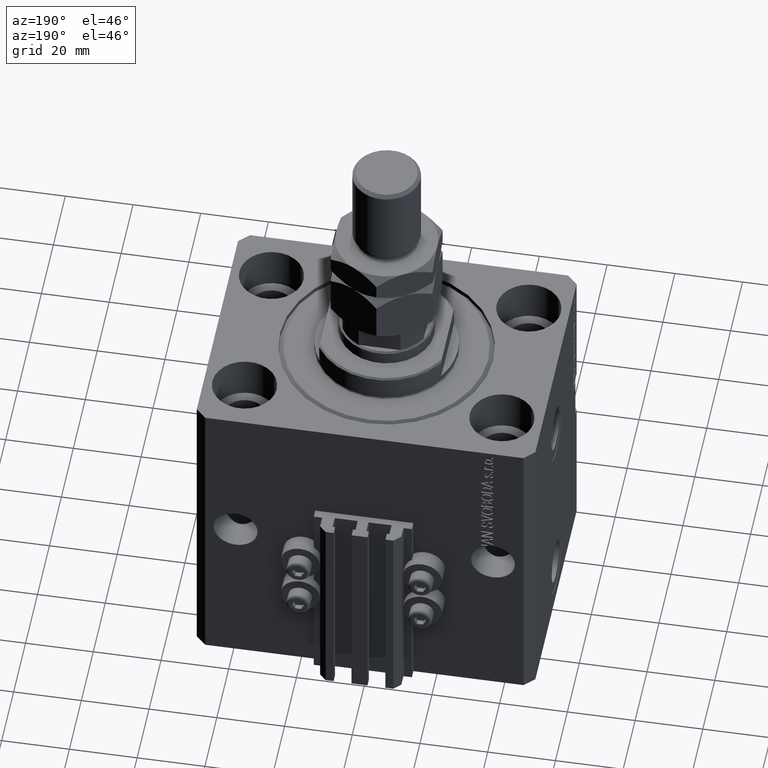
[diagram: clean part render]
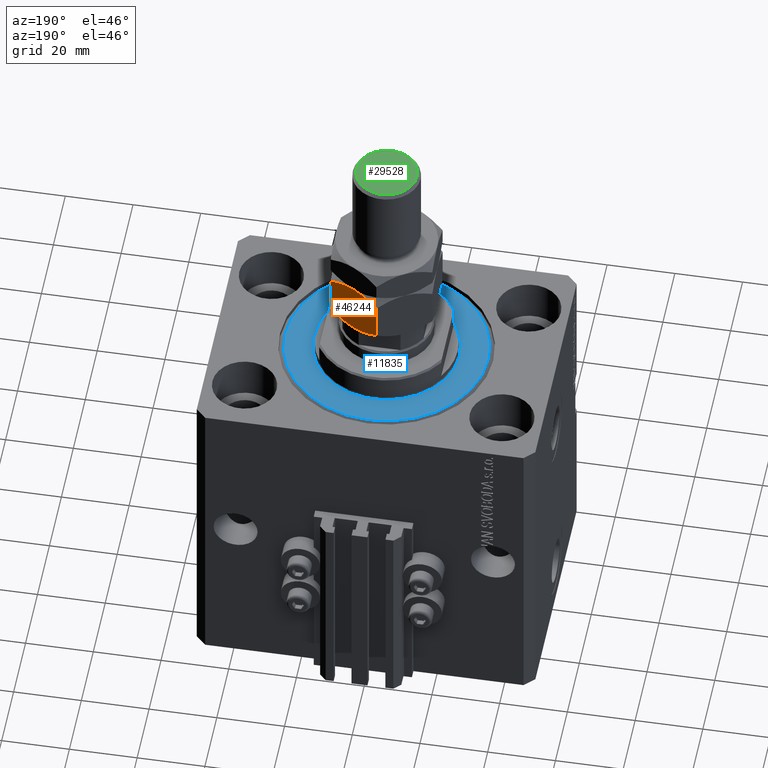
[diagram: same view with three faces highlighted in distinct colors, each labeled with its STEP entity id]
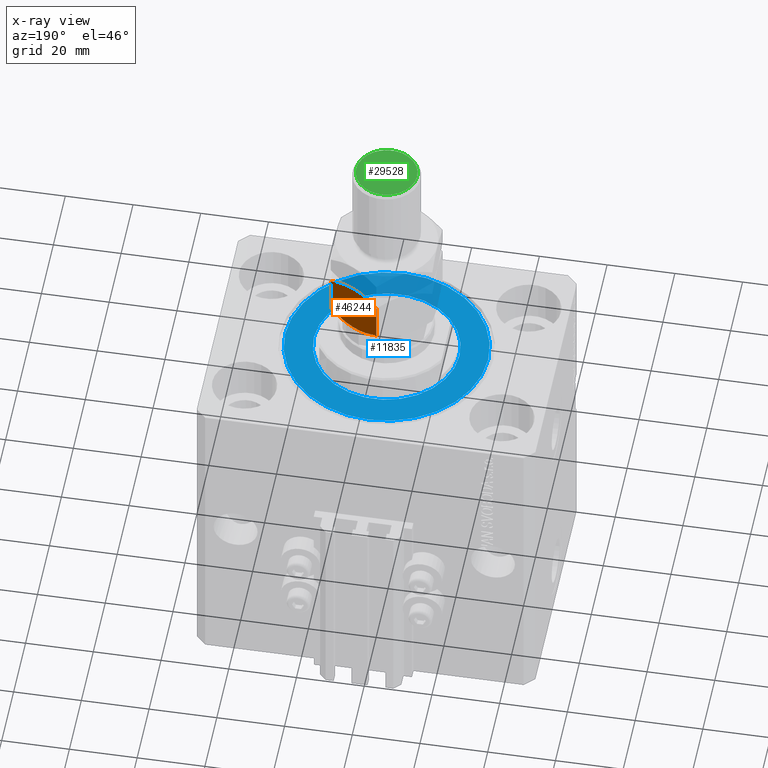
[diagram: x-ray of the same camera — body ghosted, the three highlighted faces saturated]
A machine part, auxiliary view with three faces highlighted in distinct colors.
The next image is the same camera in x-ray (body ghosted, the three faces saturated) — at least one of them is partly hidden behind the body in this view.
Their STEP definitions:

[orange] entity #46244 — the highlighted planar face has unit normal (-0.5, -0.866, 0).
#529 = CARTESIAN_POINT ( 'NONE',  ( 1.176108425306640504, 16.64148155974179843, 1.641481559741787111 ) ) ;
#1117 = CARTESIAN_POINT ( 'NONE',  ( 15.00000000000000000, 8.660254037844389075, 16.00000000000000000 ) ) ;
#2101 = CARTESIAN_POINT ( 'NONE',  ( 8.823580389329306328, 12.22621156269319798, 15.94046462602529957 ) ) ;
#3506 = CARTESIAN_POINT ( 'NONE',  ( 7.500000000000000000, 12.99038105676657651, 16.00000000000000000 ) ) ;
#3925 = CARTESIAN_POINT ( 'NONE',  ( 7.621669386706803087E-17, 17.32050807568877104, 2.320508075688761718 ) ) ;
#7078 = EDGE_LOOP ( 'NONE', ( #36674, #14073, #17906, #43982, #21628, #37387 ) ) ;
#7350 = CARTESIAN_POINT ( 'NONE',  ( 7.500000000000000000, 12.99038105676657651, 16.00000000000000000 ) ) ;
#8234 = CARTESIAN_POINT ( 'NONE',  ( 7.499999999999997335, 12.99038105676658184, 0.000000000000000000 ) ) ;
#10703 = VERTEX_POINT ( 'NONE', #12564 ) ;
#10728 = CARTESIAN_POINT ( 'NONE',  ( 13.82389157469336283, 9.339280553791368789, 14.35851844025821400 ) ) ;
#10970 = CARTESIAN_POINT ( 'NONE',  ( 10.75222765045651663, 11.11270654730956586, 15.55242859148697576 ) ) ;
#11210 = CARTESIAN_POINT ( 'NONE',  ( 12.62116548881249756, 10.03367478323606221, 14.93551393225599710 ) ) ;
#12564 = CARTESIAN_POINT ( 'NONE',  ( 15.00000000000000000, 8.660254037844389075, 13.67949192431123784 ) ) ;
#13432 = CARTESIAN_POINT ( 'NONE',  ( 2.383929548160350631, 15.94414570932928576, 14.93952096862913059 ) ) ;
#13830 = EDGE_CURVE ( 'NONE', #10703, #46080, #41760, .T. ) ;
#14073 = ORIENTED_EDGE ( 'NONE', *, *, #49131, .F. ) ;
#14336 = VERTEX_POINT ( 'NONE', #3925 ) ;
#16056 = DIRECTION ( 'NONE',  ( 0.8660254037844387076, -0.4999999999999997224, 0.000000000000000000 ) ) ;
#17042 = CARTESIAN_POINT ( 'NONE',  ( 15.00000000000000000, 8.660254037844389075, 16.00000000000000000 ) ) ;
#17906 = ORIENTED_EDGE ( 'NONE', *, *, #40590, .F. ) ;
#18484 = CARTESIAN_POINT ( 'NONE',  ( 7.621669386706803087E-17, 17.32050807568877104, 2.320508075688761718 ) ) ;
#18797 = CARTESIAN_POINT ( 'NONE',  ( 7.499999999999997335, 12.99038105676658184, 0.000000000000000000 ) ) ;
#19178 = VERTEX_POINT ( 'NONE', #18797 ) ;
#19252 = VERTEX_POINT ( 'NONE', #37237 ) ;
#20073 = B_SPLINE_CURVE_WITH_KNOTS ( 'NONE', 3,
 ( #18484, #529, #35140, #23179, #39388, #46097, #20192, #8234 ),
 .UNSPECIFIED., .F., .F.,
 ( 4, 2, 2, 4 ),
 ( 2.544309033652185071E-07, 0.004488823491893902638, 0.006733108022389172782, 0.008977392552884443794 ),
 .UNSPECIFIED. ) ;
#20192 = CARTESIAN_POINT ( 'NONE',  ( 6.843123817691747490, 13.36962869744650639, -3.557538378468061917E-16 ) ) ;
#20917 = CARTESIAN_POINT ( 'NONE',  ( 6.195449321423087241, 13.74356374221446764, 16.00000000000000355 ) ) ;
#21628 = ORIENTED_EDGE ( 'NONE', *, *, #48895, .T. ) ;
#22394 = B_SPLINE_CURVE_WITH_KNOTS ( 'NONE', 3,
 ( #48355, #41868, #33917, #45116, #29683, #44623 ),
 .UNSPECIFIED., .F., .F.,
 ( 4, 2, 4 ),
 ( 0.008977392552884443794, 0.01343452311421656532, 0.01789165367554868685 ),
 .UNSPECIFIED. ) ;
#22728 = LINE ( 'NONE', #42382, #31852 ) ;
#23179 = CARTESIAN_POINT ( 'NONE',  ( 4.247772349543482484, 14.86805556622358893, 0.4475714085130255149 ) ) ;
#24086 = VERTEX_POINT ( 'NONE', #31053 ) ;
#24739 = DIRECTION ( 'NONE',  ( -0.000000000000000000, -0.000000000000000000, -1.000000000000000000 ) ) ;
#25494 = B_SPLINE_CURVE_WITH_KNOTS ( 'NONE', 3,
 ( #40352, #20917, #28636, #13432, #32874, #36609 ),
 .UNSPECIFIED., .F., .F.,
 ( 4, 2, 4 ),
 ( 0.008977392552884448998, 0.01343452311421656706, 0.01789165367554868338 ),
 .UNSPECIFIED. ) ;
#26402 = CARTESIAN_POINT ( 'NONE',  ( 10.11832554202262457, 11.47869010025374514, 15.71619733805371411 ) ) ;
#27256 = FACE_OUTER_BOUND ( 'NONE', #7078, .T. ) ;
#27361 = EDGE_CURVE ( 'NONE', #19178, #19252, #22394, .T. ) ;
#28636 = CARTESIAN_POINT ( 'NONE',  ( 4.913081180497409939, 14.48393933357810504, 15.76967007806078946 ) ) ;
#29661 = CARTESIAN_POINT ( 'NONE',  ( 8.156876182308252510, 12.61113341608665728, 16.00000000000000355 ) ) ;
#29683 = CARTESIAN_POINT ( 'NONE',  ( 13.82525345580783949, 9.338494271363313004, 1.642267842169781833 ) ) ;
#31053 = CARTESIAN_POINT ( 'NONE',  ( 3.803331551779305683E-16, 17.32050807568877104, 13.67949192431124317 ) ) ;
#31852 = VECTOR ( 'NONE', #34915, 1000.000000000000000 ) ;
#32874 = CARTESIAN_POINT ( 'NONE',  ( 1.174746544192161846, 16.64226784216984356, 14.35773215783022572 ) ) ;
#33917 = CARTESIAN_POINT ( 'NONE',  ( 10.08691881950258740, 11.49682277995505331, 0.2303299219392160591 ) ) ;
#34862 = EDGE_CURVE ( 'NONE', #14336, #19178, #20073, .T. ) ;
#34915 = DIRECTION ( 'NONE',  ( -0.000000000000000000, -0.000000000000000000, -1.000000000000000000 ) ) ;
#34977 = PLANE ( 'NONE',  #43588 ) ;
#35140 = CARTESIAN_POINT ( 'NONE',  ( 2.378834511187503331, 15.94708733029709080, 1.064486067744004671 ) ) ;
#35478 = LINE ( 'NONE', #17042, #40629 ) ;
#36609 = CARTESIAN_POINT ( 'NONE',  ( 3.803331551779305683E-16, 17.32050807568877104, 13.67949192431124317 ) ) ;
#36674 = ORIENTED_EDGE ( 'NONE', *, *, #34862, .F. ) ;
#37237 = CARTESIAN_POINT ( 'NONE',  ( 15.00000000000000000, 8.660254037844389075, 2.320508075688765715 ) ) ;
#37387 = ORIENTED_EDGE ( 'NONE', *, *, #27361, .F. ) ;
#37626 = CARTESIAN_POINT ( 'NONE',  ( 15.00000000000000000, 8.660254037844389075, 13.67949192431123784 ) ) ;
#39388 = CARTESIAN_POINT ( 'NONE',  ( 4.881674457977373649, 14.50207201327941320, 0.2838026619462936107 ) ) ;
#40352 = CARTESIAN_POINT ( 'NONE',  ( 7.500000000000000000, 12.99038105676657651, 16.00000000000000000 ) ) ;
#40590 = EDGE_CURVE ( 'NONE', #46080, #24086, #25494, .T. ) ;
#40629 = VECTOR ( 'NONE', #24739, 1000.000000000000000 ) ;
#41760 = B_SPLINE_CURVE_WITH_KNOTS ( 'NONE', 3,
 ( #37626, #10728, #11210, #10970, #26402, #2101, #29661, #3506 ),
 .UNSPECIFIED., .F., .F.,
 ( 4, 2, 2, 4 ),
 ( 2.544309033641602453E-07, 0.004488823491893906975, 0.006733108022389177119, 0.008977392552884448998 ),
 .UNSPECIFIED. ) ;
#41868 = CARTESIAN_POINT ( 'NONE',  ( 8.804550678576910983, 12.23719837131869426, -5.031375706690542042E-16 ) ) ;
#42382 = CARTESIAN_POINT ( 'NONE',  ( 0.000000000000000000, 17.32050807568877104, 16.00000000000000000 ) ) ;
#42450 = DIRECTION ( 'NONE',  ( -0.4999999999999997780, -0.8660254037844388186, 0.000000000000000000 ) ) ;
#43588 = AXIS2_PLACEMENT_3D ( 'NONE', #1117, #42450, #16056 ) ;
#43982 = ORIENTED_EDGE ( 'NONE', *, *, #13830, .F. ) ;
#44623 = CARTESIAN_POINT ( 'NONE',  ( 15.00000000000000000, 8.660254037844389075, 2.320508075688765715 ) ) ;
#45116 = CARTESIAN_POINT ( 'NONE',  ( 12.61607045183964715, 10.03661640420386902, 1.060479031370879843 ) ) ;
#46080 = VERTEX_POINT ( 'NONE', #7350 ) ;
#46097 = CARTESIAN_POINT ( 'NONE',  ( 6.176419610670692784, 13.75455055083996214, 0.05953537397470201609 ) ) ;
#46244 = ADVANCED_FACE ( 'NONE', ( #27256 ), #34977, .F. ) ;
#48355 = CARTESIAN_POINT ( 'NONE',  ( 7.499999999999997335, 12.99038105676658184, 0.000000000000000000 ) ) ;
#48895 = EDGE_CURVE ( 'NONE', #10703, #19252, #35478, .T. ) ;
#49131 = EDGE_CURVE ( 'NONE', #24086, #14336, #22728, .T. ) ;

[blue] entity #11835 — the highlighted planar face has unit normal (0, 0, -1).
#5 = CARTESIAN_POINT ( 'NONE',  ( 21.50000000000000000, 0.000000000000000000, -2.168404344971008868E-16 ) ) ;
#1261 = AXIS2_PLACEMENT_3D ( 'NONE', #47606, #12996, #16990 ) ;
#2640 = DIRECTION ( 'NONE',  ( 0.000000000000000000, 0.000000000000000000, 1.000000000000000000 ) ) ;
#3608 = AXIS2_PLACEMENT_3D ( 'NONE', #8599, #7848, #23046 ) ;
#7848 = DIRECTION ( 'NONE',  ( 0.000000000000000000, 0.000000000000000000, 1.000000000000000000 ) ) ;
#8599 = CARTESIAN_POINT ( 'NONE',  ( 0.000000000000000000, 0.000000000000000000, 0.000000000000000000 ) ) ;
#10115 = DIRECTION ( 'NONE',  ( 1.000000000000000000, 0.000000000000000000, -0.000000000000000000 ) ) ;
#11108 = DIRECTION ( 'NONE',  ( 1.000000000000000000, 0.000000000000000000, 0.000000000000000000 ) ) ;
#11326 = CIRCLE ( 'NONE', #31204, 30.00000000000002132 ) ;
#11835 = ADVANCED_FACE ( 'NONE', ( #22053, #43983 ), #29290, .F. ) ;
#12592 = VERTEX_POINT ( 'NONE', #21139 ) ;
#12996 = DIRECTION ( 'NONE',  ( 0.000000000000000000, 0.000000000000000000, 1.000000000000000000 ) ) ;
#13253 = VERTEX_POINT ( 'NONE', #5 ) ;
#13408 = CARTESIAN_POINT ( 'NONE',  ( -30.00000000000002132, 3.765788907378112117E-15, 0.000000000000000000 ) ) ;
#14849 = DIRECTION ( 'NONE',  ( -0.000000000000000000, -0.000000000000000000, -1.000000000000000000 ) ) ;
#16990 = DIRECTION ( 'NONE',  ( 1.000000000000000000, 0.000000000000000000, 0.000000000000000000 ) ) ;
#17908 = DIRECTION ( 'NONE',  ( 1.000000000000000000, 0.000000000000000000, 0.000000000000000000 ) ) ;
#18478 = ORIENTED_EDGE ( 'NONE', *, *, #37940, .T. ) ;
#20130 = AXIS2_PLACEMENT_3D ( 'NONE', #47963, #2640, #10115 ) ;
#21139 = CARTESIAN_POINT ( 'NONE',  ( 30.00000000000002132, 0.000000000000000000, 0.000000000000000000 ) ) ;
#21162 = VERTEX_POINT ( 'NONE', #13408 ) ;
#21682 = VERTEX_POINT ( 'NONE', #22175 ) ;
#21822 = EDGE_LOOP ( 'NONE', ( #41071, #29190 ) ) ;
#22053 = FACE_BOUND ( 'NONE', #41560, .T. ) ;
#22175 = CARTESIAN_POINT ( 'NONE',  ( -21.50000000000000000, 2.632990618166809630E-15, -2.168404344971008868E-16 ) ) ;
#23046 = DIRECTION ( 'NONE',  ( 1.000000000000000000, 0.000000000000000000, 0.000000000000000000 ) ) ;
#25655 = EDGE_CURVE ( 'NONE', #12592, #21162, #39036, .T. ) ;
#26391 = AXIS2_PLACEMENT_3D ( 'NONE', #36055, #14849, #11108 ) ;
#27452 = CIRCLE ( 'NONE', #3608, 21.50000000000000000 ) ;
#29190 = ORIENTED_EDGE ( 'NONE', *, *, #29850, .T. ) ;
#29290 = PLANE ( 'NONE',  #20130 ) ;
#29602 = DIRECTION ( 'NONE',  ( -0.000000000000000000, -0.000000000000000000, -1.000000000000000000 ) ) ;
#29850 = EDGE_CURVE ( 'NONE', #21162, #12592, #11326, .T. ) ;
#29854 = CARTESIAN_POINT ( 'NONE',  ( 0.000000000000000000, 0.000000000000000000, 0.000000000000000000 ) ) ;
#31204 = AXIS2_PLACEMENT_3D ( 'NONE', #29854, #29602, #17908 ) ;
#34500 = ORIENTED_EDGE ( 'NONE', *, *, #40223, .T. ) ;
#36055 = CARTESIAN_POINT ( 'NONE',  ( 0.000000000000000000, 0.000000000000000000, 0.000000000000000000 ) ) ;
#37070 = CIRCLE ( 'NONE', #1261, 21.50000000000000000 ) ;
#37940 = EDGE_CURVE ( 'NONE', #13253, #21682, #37070, .T. ) ;
#39036 = CIRCLE ( 'NONE', #26391, 30.00000000000002132 ) ;
#40223 = EDGE_CURVE ( 'NONE', #21682, #13253, #27452, .T. ) ;
#41071 = ORIENTED_EDGE ( 'NONE', *, *, #25655, .T. ) ;
#41560 = EDGE_LOOP ( 'NONE', ( #18478, #34500 ) ) ;
#43983 = FACE_OUTER_BOUND ( 'NONE', #21822, .T. ) ;
#47606 = CARTESIAN_POINT ( 'NONE',  ( 0.000000000000000000, 0.000000000000000000, 0.000000000000000000 ) ) ;
#47963 = CARTESIAN_POINT ( 'NONE',  ( 0.000000000000000000, 0.000000000000000000, 0.000000000000000000 ) ) ;

[green] entity #29528 — the highlighted planar face has unit normal (0, 0, 1).
#2220 = AXIS2_PLACEMENT_3D ( 'NONE', #47423, #17286, #40444 ) ;
#2222 = DIRECTION ( 'NONE',  ( 0.000000000000000000, 0.000000000000000000, 1.000000000000000000 ) ) ;
#3507 = DIRECTION ( 'NONE',  ( 0.000000000000000000, 0.000000000000000000, 1.000000000000000000 ) ) ;
#3782 = CIRCLE ( 'NONE', #40385, 9.000000000000047962 ) ;
#14711 = FACE_OUTER_BOUND ( 'NONE', #19265, .T. ) ;
#16359 = ORIENTED_EDGE ( 'NONE', *, *, #21801, .T. ) ;
#17286 = DIRECTION ( 'NONE',  ( 0.000000000000000000, 0.000000000000000000, 1.000000000000000000 ) ) ;
#18916 = CIRCLE ( 'NONE', #2220, 9.000000000000047962 ) ;
#19265 = EDGE_LOOP ( 'NONE', ( #16359, #43722 ) ) ;
#21657 = AXIS2_PLACEMENT_3D ( 'NONE', #45096, #3507, #42327 ) ;
#21801 = EDGE_CURVE ( 'NONE', #34030, #25578, #3782, .T. ) ;
#25578 = VERTEX_POINT ( 'NONE', #40524 ) ;
#29528 = ADVANCED_FACE ( 'NONE', ( #14711 ), #37627, .T. ) ;
#32120 = DIRECTION ( 'NONE',  ( 1.000000000000000000, 0.000000000000000000, 0.000000000000000000 ) ) ;
#34030 = VERTEX_POINT ( 'NONE', #36854 ) ;
#36100 = CARTESIAN_POINT ( 'NONE',  ( 0.000000000000000000, 0.000000000000000000, 53.00000000000000711 ) ) ;
#36854 = CARTESIAN_POINT ( 'NONE',  ( -9.000000000000047962, 0.000000000000000000, 53.00000000000000711 ) ) ;
#37627 = PLANE ( 'NONE',  #21657 ) ;
#40385 = AXIS2_PLACEMENT_3D ( 'NONE', #36100, #2222, #32120 ) ;
#40444 = DIRECTION ( 'NONE',  ( 1.000000000000000000, 0.000000000000000000, 0.000000000000000000 ) ) ;
#40524 = CARTESIAN_POINT ( 'NONE',  ( 9.000000000000047962, 1.163414459189988443E-15, 53.00000000000000711 ) ) ;
#42327 = DIRECTION ( 'NONE',  ( 1.000000000000000000, 0.000000000000000000, -0.000000000000000000 ) ) ;
#43722 = ORIENTED_EDGE ( 'NONE', *, *, #46357, .T. ) ;
#45096 = CARTESIAN_POINT ( 'NONE',  ( 0.000000000000000000, 0.000000000000000000, 53.00000000000000711 ) ) ;
#46357 = EDGE_CURVE ( 'NONE', #25578, #34030, #18916, .T. ) ;
#47423 = CARTESIAN_POINT ( 'NONE',  ( 0.000000000000000000, 0.000000000000000000, 53.00000000000000711 ) ) ;